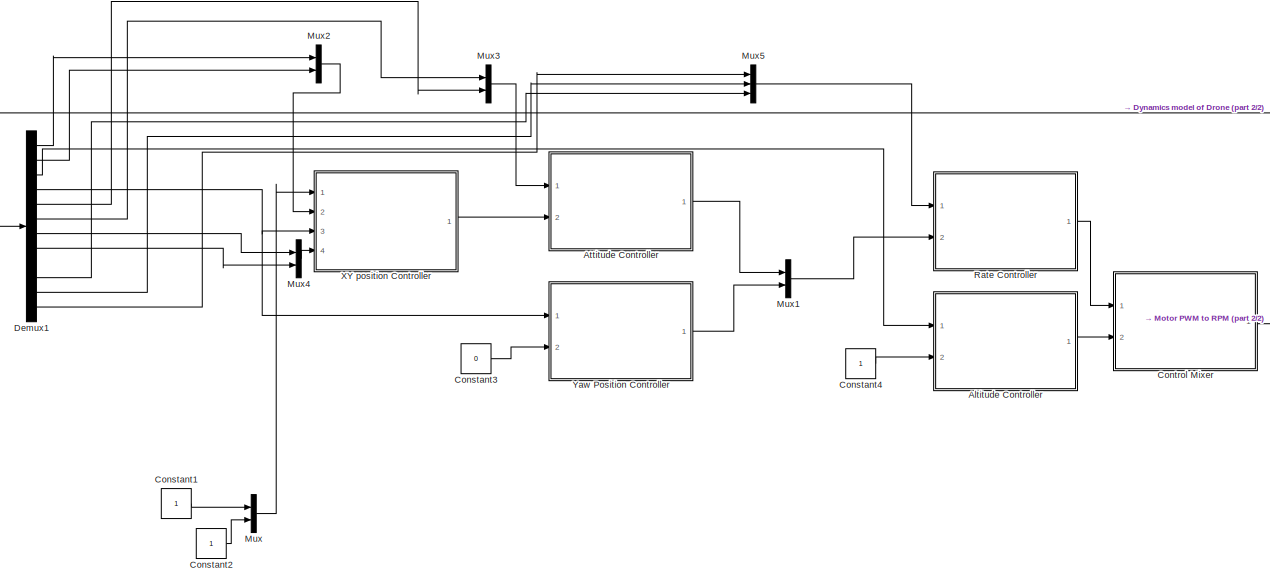
[diagram: root canvas - part 1/2, left side, full height]
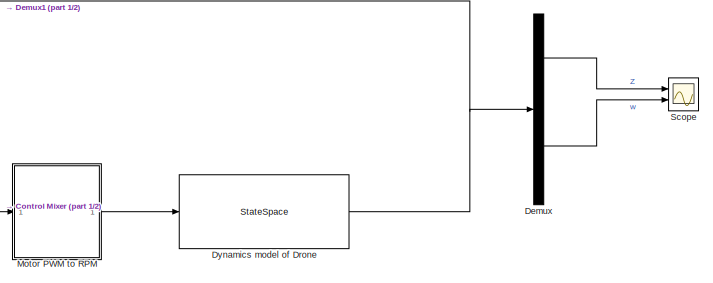
[diagram: root canvas - part 2/2, middle right region]
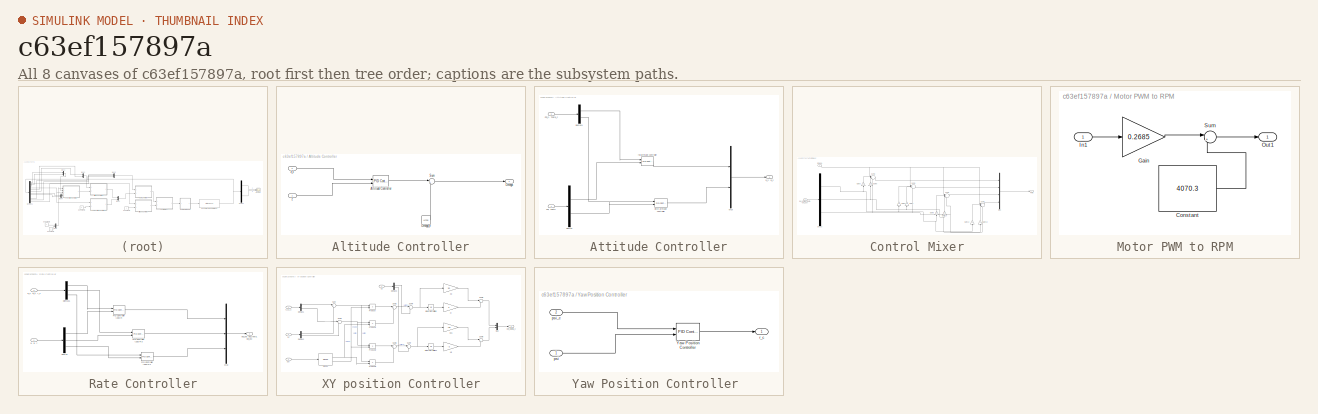
[diagram: thumbnail index - all 8 canvases of the model, root first then tree order]
MODEL slx_c63ef157897a
KIND model
CONFIG AbsTol = auto
CONFIG EnableMultiTasking = off
CONFIG FixedStep = 0.1
CONFIG MaxStep = auto
CONFIG MinStep = auto
CONFIG RelTol = auto
CONFIG SampleTimeConstraint = Unconstrained
CONFIG Solver = ode15s
CONFIG SolverName = ode15s
CONFIG StartTime = 0.0
CONFIG StopTime = 20
BLOCK [SubSystem] Altitude Controller
  Ports = [2, 1]
  RequestExecContextInheritance = off
BLOCK [Reference] Altitude Controller/Altitude Controller  REF=simulink/Continuous/PID Controller (2DOF)
  Ports = [2, 1]
  SourceBlock = simulink/Continuous/PID Controller (2DOF)
  SourceProductBaseCode = SL
  SourceProductName = Simulink
  SourceType = PID 2dof
BLOCK [Outport] Altitude Controller/Omega
  IconDisplay = Port number
  VectorParamsAs1DForOutWhenUnconnected = off
BLOCK [Constant] Altitude Controller/Omega_e
  Value = 44705
BLOCK [Sum] Altitude Controller/Sum
  IconShape = round
  InputSameDT = off
  Inputs = |++
  OutDataTypeStr = Inherit: Inherit via internal rule
  Ports = [2, 1]
  SaturateOnIntegerOverflow = off
BLOCK [Inport] Altitude Controller/z
  IconDisplay = Port number
BLOCK [Inport] Altitude Controller/z_c
  IconDisplay = Port number
  Port = 2
BLOCK [SubSystem] Attitude Controller
  Ports = [2, 1]
  RequestExecContextInheritance = off
BLOCK [Demux] Attitude Controller/Demux
  DisplayOption = bar
  Outputs = 2
  Ports = [1, 2]
BLOCK [Demux] Attitude Controller/Demux1
  DisplayOption = bar
  Outputs = 2
  Ports = [1, 2]
BLOCK [Mux] Attitude Controller/Mux
  DisplayOption = bar
  Inputs = 2
  Ports = [2, 1]
BLOCK [Inport] Attitude Controller/Phi, Theta
  IconDisplay = Port number
BLOCK [Inport] Attitude Controller/Phi_c, Theta_c
  IconDisplay = Port number
  Port = 2
BLOCK [Outport] Attitude Controller/p_c, q_c
  IconDisplay = Port number
  VectorParamsAs1DForOutWhenUnconnected = off
BLOCK [Reference] Attitude Controller/pitch attitude controller  REF=simulink/Continuous/PID Controller (2DOF)
  Ports = [2, 1]
  SourceBlock = simulink/Continuous/PID Controller (2DOF)
  SourceProductBaseCode = SL
  SourceProductName = Simulink
  SourceType = PID 2dof
BLOCK [Reference] Attitude Controller/roll attitude controller  REF=simulink/Continuous/PID Controller (2DOF)
  Ports = [2, 1]
  SourceBlock = simulink/Continuous/PID Controller (2DOF)
  SourceProductBaseCode = SL
  SourceProductName = Simulink
  SourceType = PID 2dof
BLOCK [Constant] Constant1
BLOCK [Constant] Constant2
BLOCK [Constant] Constant3
  Value = 0
BLOCK [Constant] Constant4
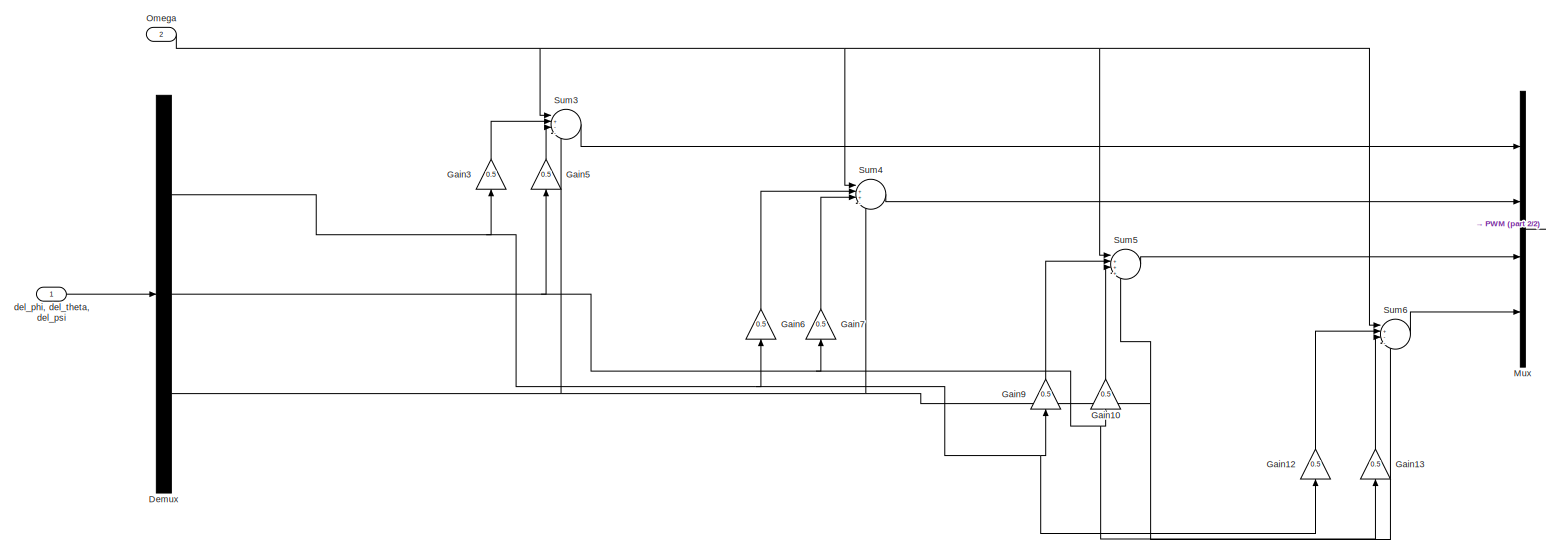
[diagram: Control Mixer - part 1/2, most of the canvas]
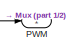
[diagram: Control Mixer - part 2/2, middle right region]
BLOCK [SubSystem] Control Mixer
  Ports = [2, 1]
  RequestExecContextInheritance = off
BLOCK [Demux] Control Mixer/Demux
  DisplayOption = bar
  Outputs = 3
  Ports = [1, 3]
BLOCK [Gain] Control Mixer/Gain10
  Gain = 0.5
  OutDataTypeStr = Inherit: Inherit via internal rule
  ParamDataTypeStr = Inherit: Inherit via internal rule
  SaturateOnIntegerOverflow = off
BLOCK [Gain] Control Mixer/Gain12
  Gain = 0.5
  OutDataTypeStr = Inherit: Inherit via internal rule
  ParamDataTypeStr = Inherit: Inherit via internal rule
  SaturateOnIntegerOverflow = off
BLOCK [Gain] Control Mixer/Gain13
  Gain = 0.5
  OutDataTypeStr = Inherit: Inherit via internal rule
  ParamDataTypeStr = Inherit: Inherit via internal rule
  SaturateOnIntegerOverflow = off
BLOCK [Gain] Control Mixer/Gain3
  Gain = 0.5
  OutDataTypeStr = Inherit: Inherit via internal rule
  ParamDataTypeStr = Inherit: Inherit via internal rule
  SaturateOnIntegerOverflow = off
BLOCK [Gain] Control Mixer/Gain5
  Gain = 0.5
  OutDataTypeStr = Inherit: Inherit via internal rule
  ParamDataTypeStr = Inherit: Inherit via internal rule
  SaturateOnIntegerOverflow = off
BLOCK [Gain] Control Mixer/Gain6
  Gain = 0.5
  OutDataTypeStr = Inherit: Inherit via internal rule
  ParamDataTypeStr = Inherit: Inherit via internal rule
  SaturateOnIntegerOverflow = off
BLOCK [Gain] Control Mixer/Gain7
  Gain = 0.5
  OutDataTypeStr = Inherit: Inherit via internal rule
  ParamDataTypeStr = Inherit: Inherit via internal rule
  SaturateOnIntegerOverflow = off
BLOCK [Gain] Control Mixer/Gain9
  Gain = 0.5
  OutDataTypeStr = Inherit: Inherit via internal rule
  ParamDataTypeStr = Inherit: Inherit via internal rule
  SaturateOnIntegerOverflow = off
BLOCK [Mux] Control Mixer/Mux
  DisplayOption = bar
  Ports = [4, 1]
BLOCK [Inport] Control Mixer/Omega
  IconDisplay = Port number
  Port = 2
BLOCK [Outport] Control Mixer/PWM
  IconDisplay = Port number
  VectorParamsAs1DForOutWhenUnconnected = off
BLOCK [Sum] Control Mixer/Sum3
  IconShape = round
  InputSameDT = off
  Inputs = |+---
  OutDataTypeStr = Inherit: Inherit via internal rule
  Ports = [4, 1]
  SaturateOnIntegerOverflow = off
BLOCK [Sum] Control Mixer/Sum4
  IconShape = round
  InputSameDT = off
  Inputs = |++-+
  OutDataTypeStr = Inherit: Inherit via internal rule
  Ports = [4, 1]
  SaturateOnIntegerOverflow = off
BLOCK [Sum] Control Mixer/Sum5
  IconShape = round
  InputSameDT = off
  Inputs = |+++-
  OutDataTypeStr = Inherit: Inherit via internal rule
  Ports = [4, 1]
  SaturateOnIntegerOverflow = off
BLOCK [Sum] Control Mixer/Sum6
  IconShape = round
  InputSameDT = off
  Inputs = |+--+
  OutDataTypeStr = Inherit: Inherit via internal rule
  Ports = [4, 1]
  SaturateOnIntegerOverflow = off
BLOCK [Inport] Control Mixer/del_phi, del_theta, del_psi
  IconDisplay = Port number
BLOCK [Demux] Demux
  DisplayOption = bar
  Outputs = 12
  Ports = [1, 12]
BLOCK [Demux] Demux1
  DisplayOption = bar
  Outputs = 12
  Ports = [1, 12]
BLOCK [StateSpace] Dynamics model of Drone
  A = [0,0,0,0,0,0,1,0,0,0,0,0;0,0,0,0,0,0,0,1,0,0,0,0;0,0,0,0,0,0,0,0,1,0,0,0;0,0,0,0,0,0,0,0,0,1,0,0;0,0,0,0,0,0,0,0,0,0,1,0;0,0,0,0,0,0,0,0,0,0,0,1;0,0,0,0,9.81000000000000,0,0,0,0,0,0,0;0,0,0,0,0,-9.81000000000000,0,0,0,0,0,0;0,0,0,0,0,0,0,0,0,0,0,0;0,0,0,0,0,0,0,0,0,0,0,0;0,0,0,0,0,0,0,0,0,0,0,0;0,0,0,0,0,0,0,0,0,0,0,0]
  B = [ 0 0 0 0;\n  0 0 0 0;\n  0 0 0 0;\n  0 0 0 0;\n  0 0 0 0;\n  0 0 0 0;\n  0 0 0 0;\n  0 0 0 0;    0.0002    0.0002    0.0002    0.0002;   -0.0731    0.0731   -0.0731    0.0731;   -0.1236    0.1236    0.1236   -0.1236;   -0.1272   -0.1272    0.1272    0.1272;]
  C = [1     0     0     0     0     0     0     0     0     0     0     0;\n 0     1     0     0     0     0     0     0     0     0     0     0;\n 0     0     1     0     0     0     0     0     0     0     0     0;\n 0     0     0     1     0     0     0     0     0     0     0     0;\n 0     0     0     0     1     0     0     0     0     0     0     0;\n 0     0     0     0     0     1     0     0     0...<+440ch>
  ContinuousStateAttributes = 'X.Y.Z.Roll.PItch.Yaw.U.V.W.Roll_Rate.Pitch_Rate.Yaw_Rate'
  D = [0     0     0     0;\n 0     0     0     0;\n 0     0     0     0;\n 0     0     0     0;\n 0     0     0     0;\n 0     0     0     0;\n 0     0     0     0;\n 0     0     0     0;\n 0     0     0     0;\n 0     0     0     0;\n 0     0     0     0;\n 0     0     0     0;]
  InitialCondition = [0,0,0,0,0,0,0,0,0,0,0,0]
  Ports = [1, 1]
BLOCK [SubSystem] Motor PWM to RPM
  Ports = [1, 1]
  RequestExecContextInheritance = off
BLOCK [Constant] Motor PWM to RPM/Constant
  Value = 4070.3
BLOCK [Gain] Motor PWM to RPM/Gain
  Gain = 0.2685
  OutDataTypeStr = Inherit: Inherit via internal rule
  ParamDataTypeStr = Inherit: Inherit via internal rule
  SaturateOnIntegerOverflow = off
BLOCK [Inport] Motor PWM to RPM/In1
  IconDisplay = Port number
BLOCK [Outport] Motor PWM to RPM/Out1
  IconDisplay = Port number
  VectorParamsAs1DForOutWhenUnconnected = off
BLOCK [Sum] Motor PWM to RPM/Sum
  IconShape = round
  InputSameDT = off
  Inputs = |++
  OutDataTypeStr = Inherit: Inherit via internal rule
  Ports = [2, 1]
  SaturateOnIntegerOverflow = off
BLOCK [Mux] Mux
  DisplayOption = bar
  Inputs = 2
  Ports = [2, 1]
BLOCK [Mux] Mux1
  DisplayOption = bar
  Inputs = 2
  Ports = [2, 1]
BLOCK [Mux] Mux2
  DisplayOption = bar
  Inputs = 2
  Ports = [2, 1]
BLOCK [Mux] Mux3
  DisplayOption = bar
  Inputs = 2
  Ports = [2, 1]
BLOCK [Mux] Mux4
  DisplayOption = bar
  Inputs = 2
  Ports = [2, 1]
BLOCK [Mux] Mux5
  DisplayOption = bar
  Inputs = 3
  Ports = [3, 1]
BLOCK [SubSystem] Rate Controller
  Ports = [2, 1]
  RequestExecContextInheritance = off
BLOCK [Demux] Rate Controller/Demux
  DisplayOption = bar
  Outputs = 3
  Ports = [1, 3]
BLOCK [Demux] Rate Controller/Demux1
  DisplayOption = bar
  Outputs = 3
  Ports = [1, 3]
BLOCK [Mux] Rate Controller/Mux
  DisplayOption = bar
  Inputs = 3
  Ports = [3, 1]
BLOCK [Reference] Rate Controller/PID Controller (2DOF)  REF=simulink/Continuous/PID Controller (2DOF)
  Ports = [2, 1]
  SourceBlock = simulink/Continuous/PID Controller (2DOF)
  SourceProductBaseCode = SL
  SourceProductName = Simulink
  SourceType = PID 2dof
BLOCK [Reference] Rate Controller/PID Controller (2DOF)3  REF=simulink/Continuous/PID Controller (2DOF)
  Ports = [2, 1]
  SourceBlock = simulink/Continuous/PID Controller (2DOF)
  SourceProductBaseCode = SL
  SourceProductName = Simulink
  SourceType = PID 2dof
BLOCK [Reference] Rate Controller/PID Controller (2DOF)4  REF=simulink/Continuous/PID Controller (2DOF)
  Ports = [2, 1]
  SourceBlock = simulink/Continuous/PID Controller (2DOF)
  SourceProductBaseCode = SL
  SourceProductName = Simulink
  SourceType = PID 2dof
BLOCK [Outport] Rate Controller/del_phi, del_theta, del_psi
  IconDisplay = Port number
  VectorParamsAs1DForOutWhenUnconnected = off
BLOCK [Inport] Rate Controller/p, q, r
  IconDisplay = Port number
BLOCK [Inport] Rate Controller/p_c, q_c, r_c
  IconDisplay = Port number
  Port = 2
BLOCK [Scope] Scope
  Floating = off
  NumInputPorts = 2
  Ports = [2]
  ScopeSpecificationString = Simulink.scopes.TimeScopeBlockCfg('CurrentConfiguration', extmgr.ConfigurationSet(extmgr.Configuration('Core','General UI',true),extmgr.Configuration('Core','Source UI',true),extmgr.Configuration('Sources','WiredSimulink',true),extmgr.Configuration('Visuals','Time Domain',true,'SerializedDisplays',{struct('MinYLimReal','-215.45384','MaxYLimReal','1939.08455','YLabelReal','','MinYLimMag',' 0.00000'...<+1659ch>
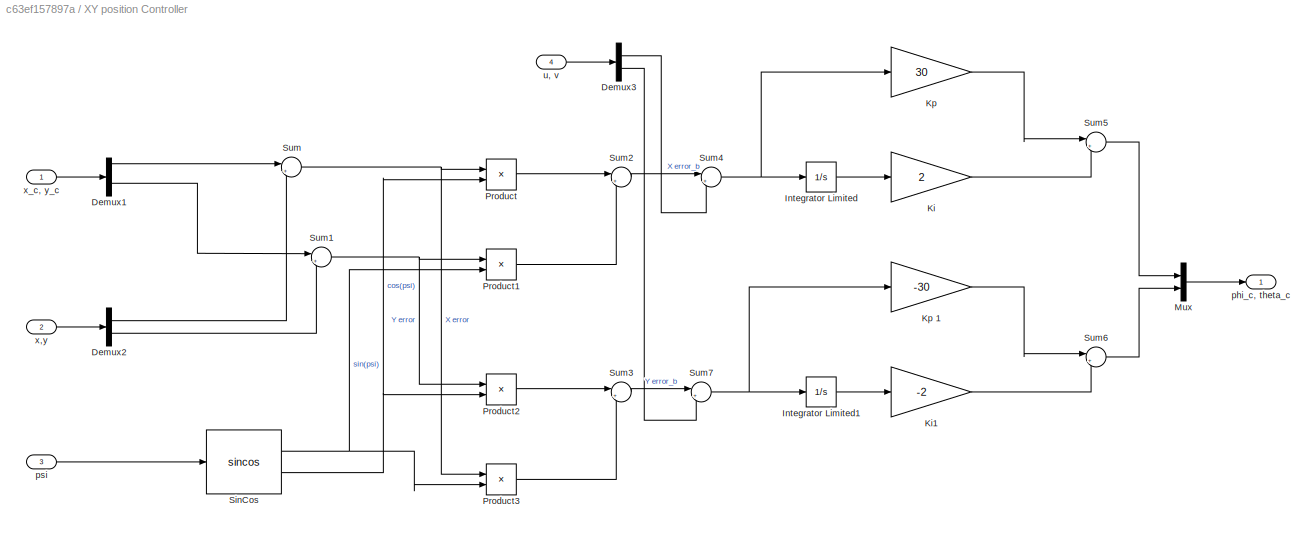
BLOCK [SubSystem] XY position Controller
  Ports = [4, 1]
  RequestExecContextInheritance = off
BLOCK [Demux] XY position Controller/Demux1
  DisplayOption = bar
  Outputs = 2
  Ports = [1, 2]
BLOCK [Demux] XY position Controller/Demux2
  DisplayOption = bar
  Outputs = 2
  Ports = [1, 2]
BLOCK [Demux] XY position Controller/Demux3
  DisplayOption = bar
  Outputs = 2
  Ports = [1, 2]
BLOCK [Integrator] XY position Controller/Integrator Limited
  LimitOutput = on
  LowerSaturationLimit = -30
  Ports = [1, 1]
  UpperSaturationLimit = 30
BLOCK [Integrator] XY position Controller/Integrator Limited1
  LimitOutput = on
  LowerSaturationLimit = -30
  Ports = [1, 1]
  UpperSaturationLimit = 30
BLOCK [Gain] XY position Controller/Ki
  Gain = 2
  OutDataTypeStr = Inherit: Inherit via internal rule
  ParamDataTypeStr = Inherit: Inherit via internal rule
  SaturateOnIntegerOverflow = off
BLOCK [Gain] XY position Controller/Ki1
  Gain = -2
  OutDataTypeStr = Inherit: Inherit via internal rule
  ParamDataTypeStr = Inherit: Inherit via internal rule
  SaturateOnIntegerOverflow = off
BLOCK [Gain] XY position Controller/Kp 
  Gain = 30
  OutDataTypeStr = Inherit: Inherit via internal rule
  ParamDataTypeStr = Inherit: Inherit via internal rule
  SaturateOnIntegerOverflow = off
BLOCK [Gain] XY position Controller/Kp 1
  Gain = -30
  OutDataTypeStr = Inherit: Inherit via internal rule
  ParamDataTypeStr = Inherit: Inherit via internal rule
  SaturateOnIntegerOverflow = off
BLOCK [Mux] XY position Controller/Mux
  DisplayOption = bar
  Inputs = 2
  Ports = [2, 1]
BLOCK [Product] XY position Controller/Product
  InputSameDT = off
  OutDataTypeStr = Inherit: Inherit via internal rule
  Ports = [2, 1]
  RndMeth = Floor
  SaturateOnIntegerOverflow = off
BLOCK [Product] XY position Controller/Product1
  InputSameDT = off
  OutDataTypeStr = Inherit: Inherit via internal rule
  Ports = [2, 1]
  RndMeth = Floor
  SaturateOnIntegerOverflow = off
BLOCK [Product] XY position Controller/Product2
  InputSameDT = off
  OutDataTypeStr = Inherit: Inherit via internal rule
  Ports = [2, 1]
  RndMeth = Floor
  SaturateOnIntegerOverflow = off
BLOCK [Product] XY position Controller/Product3
  InputSameDT = off
  OutDataTypeStr = Inherit: Inherit via internal rule
  Ports = [2, 1]
  RndMeth = Floor
  SaturateOnIntegerOverflow = off
BLOCK [Trigonometry] XY position Controller/SinCos
  Operator = sincos
  Ports = [1, 2]
BLOCK [Sum] XY position Controller/Sum
  IconShape = round
  InputSameDT = off
  Inputs = |+-
  OutDataTypeStr = Inherit: Inherit via internal rule
  Ports = [2, 1]
  SaturateOnIntegerOverflow = off
BLOCK [Sum] XY position Controller/Sum1
  IconShape = round
  InputSameDT = off
  Inputs = |+-
  OutDataTypeStr = Inherit: Inherit via internal rule
  Ports = [2, 1]
  SaturateOnIntegerOverflow = off
BLOCK [Sum] XY position Controller/Sum2
  IconShape = round
  InputSameDT = off
  Inputs = |++
  OutDataTypeStr = Inherit: Inherit via internal rule
  Ports = [2, 1]
  SaturateOnIntegerOverflow = off
BLOCK [Sum] XY position Controller/Sum3
  IconShape = round
  InputSameDT = off
  Inputs = |+-
  OutDataTypeStr = Inherit: Inherit via internal rule
  Ports = [2, 1]
  SaturateOnIntegerOverflow = off
BLOCK [Sum] XY position Controller/Sum4
  IconShape = round
  InputSameDT = off
  Inputs = |+-
  OutDataTypeStr = Inherit: Inherit via internal rule
  Ports = [2, 1]
  SaturateOnIntegerOverflow = off
BLOCK [Sum] XY position Controller/Sum5
  IconShape = round
  InputSameDT = off
  Inputs = |++
  OutDataTypeStr = Inherit: Inherit via internal rule
  Ports = [2, 1]
  SaturateOnIntegerOverflow = off
BLOCK [Sum] XY position Controller/Sum6
  IconShape = round
  InputSameDT = off
  Inputs = |++
  OutDataTypeStr = Inherit: Inherit via internal rule
  Ports = [2, 1]
  SaturateOnIntegerOverflow = off
BLOCK [Sum] XY position Controller/Sum7
  IconShape = round
  InputSameDT = off
  Inputs = |+-
  OutDataTypeStr = Inherit: Inherit via internal rule
  Ports = [2, 1]
  SaturateOnIntegerOverflow = off
BLOCK [Outport] XY position Controller/phi_c, theta_c
  IconDisplay = Port number
  VectorParamsAs1DForOutWhenUnconnected = off
BLOCK [Inport] XY position Controller/psi
  IconDisplay = Port number
  Port = 3
BLOCK [Inport] XY position Controller/u, v
  IconDisplay = Port number
  Port = 4
BLOCK [Inport] XY position Controller/x,y
  IconDisplay = Port number
  Port = 2
BLOCK [Inport] XY position Controller/x_c, y_c
  IconDisplay = Port number
BLOCK [SubSystem] Yaw Position Controller 
  Ports = [2, 1]
  RequestExecContextInheritance = off
BLOCK [Reference] Yaw Position Controller /Yaw Position Controller  REF=simulink/Continuous/PID Controller (2DOF)
  Ports = [2, 1]
  SourceBlock = simulink/Continuous/PID Controller (2DOF)
  SourceProductBaseCode = SL
  SourceProductName = Simulink
  SourceType = PID 2dof
BLOCK [Inport] Yaw Position Controller /psi
  IconDisplay = Port number
BLOCK [Inport] Yaw Position Controller /psi_c
  IconDisplay = Port number
  Port = 2
BLOCK [Outport] Yaw Position Controller /r_c
  IconDisplay = Port number
  VectorParamsAs1DForOutWhenUnconnected = off
LINE Altitude Controller/Altitude Controller:1 -> Altitude Controller/Sum:1
LINE Altitude Controller/Omega_e:1 -> Altitude Controller/Sum:2
LINE Altitude Controller/Sum:1 -> Altitude Controller/Omega:1
LINE Altitude Controller/z:1 -> Altitude Controller/Altitude Controller:2
LINE Altitude Controller/z_c:1 -> Altitude Controller/Altitude Controller:1
LINE Altitude Controller:1 -> Control Mixer:2
LINE Attitude Controller/Demux1:1 -> Attitude Controller/roll attitude controller:1
LINE Attitude Controller/Demux1:2 -> Attitude Controller/pitch attitude controller:1
LINE Attitude Controller/Demux:1 -> Attitude Controller/roll attitude controller:2
LINE Attitude Controller/Demux:2 -> Attitude Controller/pitch attitude controller:2
LINE Attitude Controller/Mux:1 -> Attitude Controller/p_c, q_c:1
LINE Attitude Controller/Phi, Theta:1 -> Attitude Controller/Demux:1
LINE Attitude Controller/Phi_c, Theta_c:1 -> Attitude Controller/Demux1:1
LINE Attitude Controller/pitch attitude controller:1 -> Attitude Controller/Mux:2
LINE Attitude Controller/roll attitude controller:1 -> Attitude Controller/Mux:1
LINE Attitude Controller:1 -> Mux1:1
LINE Constant1:1 -> Mux:1
LINE Constant2:1 -> Mux:2
LINE Constant3:1 -> Yaw Position Controller :2
LINE Constant4:1 -> Altitude Controller:2
NET Control Mixer/Demux:1 -> Control Mixer/Gain12:1, Control Mixer/Gain3:1, Control Mixer/Gain6:1, Control Mixer/Gain9:1
NET Control Mixer/Demux:2 -> Control Mixer/Gain10:1, Control Mixer/Gain13:1, Control Mixer/Gain5:1, Control Mixer/Gain7:1
NET Control Mixer/Demux:3 -> Control Mixer/Sum3:4, Control Mixer/Sum4:4, Control Mixer/Sum5:4, Control Mixer/Sum6:4
LINE Control Mixer/Gain10:1 -> Control Mixer/Sum5:3
LINE Control Mixer/Gain12:1 -> Control Mixer/Sum6:2
LINE Control Mixer/Gain13:1 -> Control Mixer/Sum6:3
LINE Control Mixer/Gain3:1 -> Control Mixer/Sum3:2
LINE Control Mixer/Gain5:1 -> Control Mixer/Sum3:3
LINE Control Mixer/Gain6:1 -> Control Mixer/Sum4:2
LINE Control Mixer/Gain7:1 -> Control Mixer/Sum4:3
LINE Control Mixer/Gain9:1 -> Control Mixer/Sum5:2
LINE Control Mixer/Mux:1 -> Control Mixer/PWM:1
NET Control Mixer/Omega:1 -> Control Mixer/Sum3:1, Control Mixer/Sum4:1, Control Mixer/Sum5:1, Control Mixer/Sum6:1
LINE Control Mixer/Sum3:1 -> Control Mixer/Mux:1
LINE Control Mixer/Sum4:1 -> Control Mixer/Mux:2
LINE Control Mixer/Sum5:1 -> Control Mixer/Mux:3
LINE Control Mixer/Sum6:1 -> Control Mixer/Mux:4
LINE Control Mixer/del_phi, del_theta, del_psi:1 -> Control Mixer/Demux:1
LINE Control Mixer:1 -> Motor PWM to RPM:1
LINE Demux1:1 -> Mux2:1
LINE Demux1:10 -> Mux5:3
LINE Demux1:11 -> Mux5:2
LINE Demux1:12 -> Mux5:1
LINE Demux1:2 -> Mux2:2
LINE Demux1:3 -> Altitude Controller:1
NET Demux1:4 -> XY position Controller:3, Yaw Position Controller :1
LINE Demux1:5 -> Mux3:2
LINE Demux1:6 -> Mux3:1
LINE Demux1:7 -> Mux4:1
LINE Demux1:8 -> Mux4:2
LINE Demux:3 -> Scope:1
LINE Demux:9 -> Scope:2
NET Dynamics model of Drone:1 -> Demux1:1, Demux:1
LINE Motor PWM to RPM/Constant:1 -> Motor PWM to RPM/Sum:2
LINE Motor PWM to RPM/Gain:1 -> Motor PWM to RPM/Sum:1
LINE Motor PWM to RPM/In1:1 -> Motor PWM to RPM/Gain:1
LINE Motor PWM to RPM/Sum:1 -> Motor PWM to RPM/Out1:1
LINE Motor PWM to RPM:1 -> Dynamics model of Drone:1
LINE Mux1:1 -> Rate Controller:2
LINE Mux2:1 -> XY position Controller:2
LINE Mux3:1 -> Attitude Controller:1
LINE Mux4:1 -> XY position Controller:4
LINE Mux5:1 -> Rate Controller:1
LINE Mux:1 -> XY position Controller:1
LINE Rate Controller/Demux1:1 -> Rate Controller/PID Controller (2DOF):1
LINE Rate Controller/Demux1:2 -> Rate Controller/PID Controller (2DOF)3:1
LINE Rate Controller/Demux1:3 -> Rate Controller/PID Controller (2DOF)4:1
LINE Rate Controller/Demux:1 -> Rate Controller/PID Controller (2DOF):2
LINE Rate Controller/Demux:2 -> Rate Controller/PID Controller (2DOF)3:2
LINE Rate Controller/Demux:3 -> Rate Controller/PID Controller (2DOF)4:2
LINE Rate Controller/Mux:1 -> Rate Controller/del_phi, del_theta, del_psi:1
LINE Rate Controller/PID Controller (2DOF)3:1 -> Rate Controller/Mux:2
LINE Rate Controller/PID Controller (2DOF)4:1 -> Rate Controller/Mux:3
LINE Rate Controller/PID Controller (2DOF):1 -> Rate Controller/Mux:1
LINE Rate Controller/p, q, r:1 -> Rate Controller/Demux:1
LINE Rate Controller/p_c, q_c, r_c:1 -> Rate Controller/Demux1:1
LINE Rate Controller:1 -> Control Mixer:1
LINE XY position Controller/Demux1:1 -> XY position Controller/Sum:1
LINE XY position Controller/Demux1:2 -> XY position Controller/Sum1:1
LINE XY position Controller/Demux2:1 -> XY position Controller/Sum:2
LINE XY position Controller/Demux2:2 -> XY position Controller/Sum1:2
LINE XY position Controller/Demux3:1 -> XY position Controller/Sum4:2
LINE XY position Controller/Demux3:2 -> XY position Controller/Sum7:2
LINE XY position Controller/Integrator Limited1:1 -> XY position Controller/Ki1:1
LINE XY position Controller/Integrator Limited:1 -> XY position Controller/Ki:1
LINE XY position Controller/Ki1:1 -> XY position Controller/Sum6:2
LINE XY position Controller/Ki:1 -> XY position Controller/Sum5:2
LINE XY position Controller/Kp 1:1 -> XY position Controller/Sum6:1
LINE XY position Controller/Kp :1 -> XY position Controller/Sum5:1
LINE XY position Controller/Mux:1 -> XY position Controller/phi_c, theta_c:1
LINE XY position Controller/Product1:1 -> XY position Controller/Sum2:2
LINE XY position Controller/Product2:1 -> XY position Controller/Sum3:1
LINE XY position Controller/Product3:1 -> XY position Controller/Sum3:2
LINE XY position Controller/Product:1 -> XY position Controller/Sum2:1
NET XY position Controller/SinCos:1 -> XY position Controller/Product1:2, XY position Controller/Product3:2
NET XY position Controller/SinCos:2 -> XY position Controller/Product2:2, XY position Controller/Product:2
NET XY position Controller/Sum1:1 -> XY position Controller/Product1:1, XY position Controller/Product2:1
LINE XY position Controller/Sum2:1 -> XY position Controller/Sum4:1
LINE XY position Controller/Sum3:1 -> XY position Controller/Sum7:1
NET XY position Controller/Sum4:1 -> XY position Controller/Integrator Limited:1, XY position Controller/Kp :1
LINE XY position Controller/Sum5:1 -> XY position Controller/Mux:1
LINE XY position Controller/Sum6:1 -> XY position Controller/Mux:2
NET XY position Controller/Sum7:1 -> XY position Controller/Integrator Limited1:1, XY position Controller/Kp 1:1
NET XY position Controller/Sum:1 -> XY position Controller/Product3:1, XY position Controller/Product:1
LINE XY position Controller/psi:1 -> XY position Controller/SinCos:1
LINE XY position Controller/u, v:1 -> XY position Controller/Demux3:1
LINE XY position Controller/x,y:1 -> XY position Controller/Demux2:1
LINE XY position Controller/x_c, y_c:1 -> XY position Controller/Demux1:1
LINE XY position Controller:1 -> Attitude Controller:2
LINE Yaw Position Controller /Yaw Position Controller:1 -> Yaw Position Controller /r_c:1
LINE Yaw Position Controller /psi:1 -> Yaw Position Controller /Yaw Position Controller:2
LINE Yaw Position Controller /psi_c:1 -> Yaw Position Controller /Yaw Position Controller:1
LINE Yaw Position Controller :1 -> Mux1:2
note: NET lines group one-source signal fan-out (src -> all destinations, sorted); 1:1 wires keep LINE
